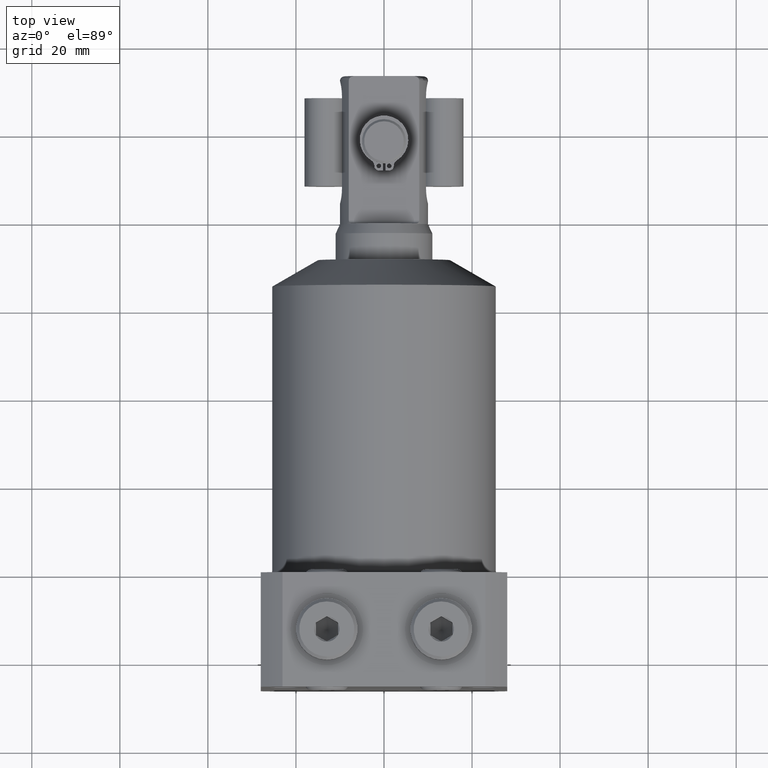
[diagram: clean part render]
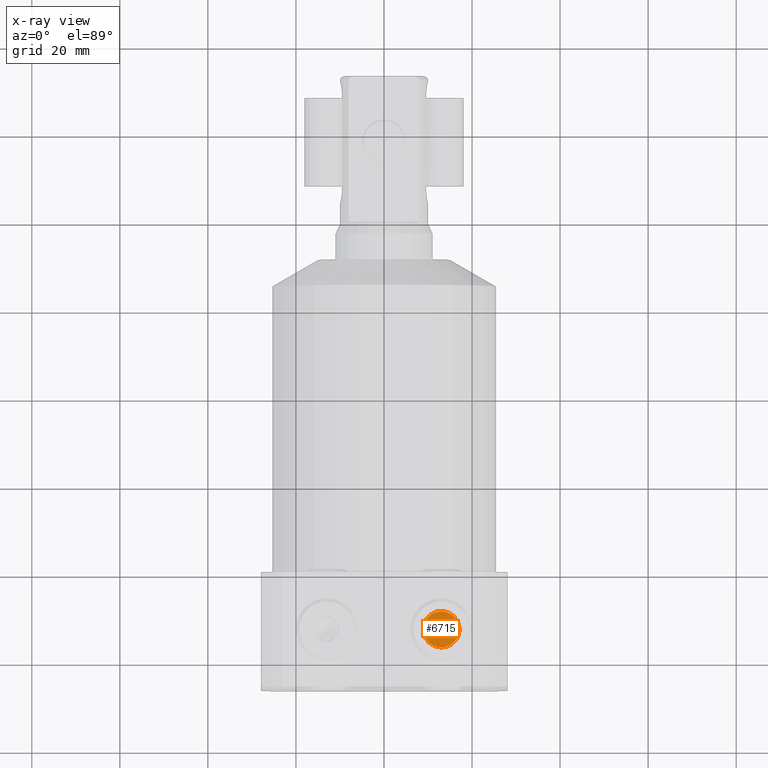
[diagram: x-ray — body ghosted, one internal face saturated and labeled with its STEP entity id]
A machine part, top view, then the same camera in x-ray: the body is ghosted and one INTERNAL B-rep face — a face not visible from any outside direction — is saturated and labeled: STEP entity #6715.
In plain terms, the highlighted planar face has unit normal (0, 0, 1).
Its self-contained STEP definition (entity closure, byte-faithful):
#3087=CARTESIAN_POINT('',(1.3E1,-1.3E1,3.530784845243E1));
#3088=DIRECTION('',(0.E0,0.E0,1.E0));
#3089=DIRECTION('',(0.E0,1.E0,0.E0));
#3090=AXIS2_PLACEMENT_3D('',#3087,#3088,#3089);
#3102=CARTESIAN_POINT('',(1.3E1,-1.3E1,3.530784845243E1));
#3103=DIRECTION('',(0.E0,0.E0,-1.E0));
#3104=DIRECTION('',(0.E0,1.E0,0.E0));
#3105=AXIS2_PLACEMENT_3D('',#3102,#3103,#3104);
#4045=CARTESIAN_POINT('',(1.3E1,-8.875E0,3.530784845243E1));
#4047=VERTEX_POINT('',#4045);
#4049=CARTESIAN_POINT('',(1.3E1,-1.7125E1,3.530784845243E1));
#4051=VERTEX_POINT('',#4049);
#6706=CARTESIAN_POINT('',(1.3E1,-1.3E1,3.530784845243E1));
#6707=DIRECTION('',(0.E0,0.E0,1.E0));
#6708=DIRECTION('',(0.E0,1.E0,0.E0));
#6709=AXIS2_PLACEMENT_3D('',#6706,#6707,#6708);
#6710=PLANE('',#6709);
#6711=ORIENTED_EDGE('',*,*,#6699,.F.);
#6712=ORIENTED_EDGE('',*,*,#6688,.T.);
#6713=EDGE_LOOP('',(#6711,#6712));
#6714=FACE_OUTER_BOUND('',#6713,.F.);
#3091=CIRCLE('',#3090,4.125E0);
#3106=CIRCLE('',#3105,4.125E0);
#6688=EDGE_CURVE('',#4047,#4051,#3091,.T.);
#6699=EDGE_CURVE('',#4047,#4051,#3106,.T.);
#6715=ADVANCED_FACE('',(#6714),#6710,.F.);